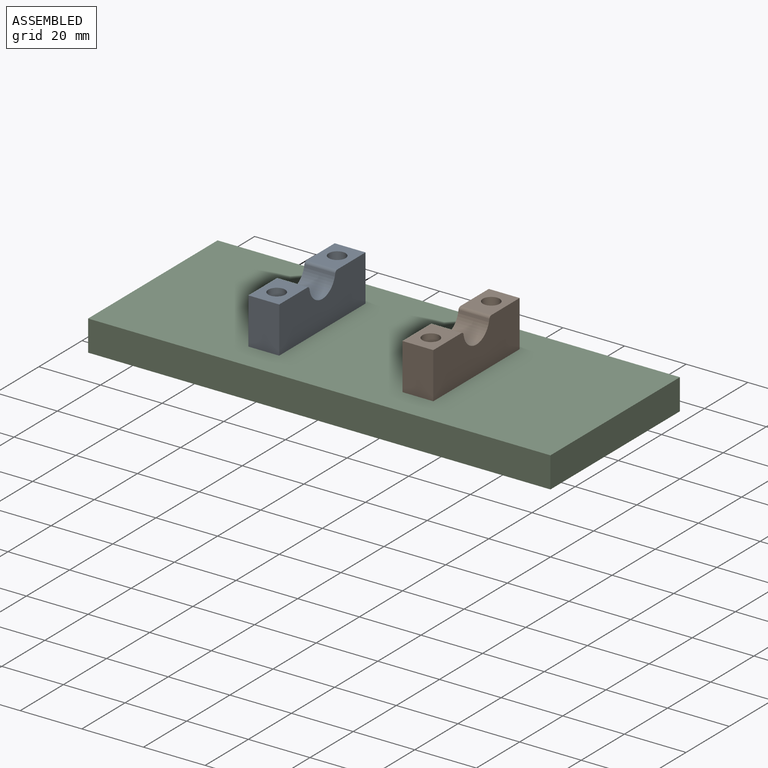
[diagram: assembled view]
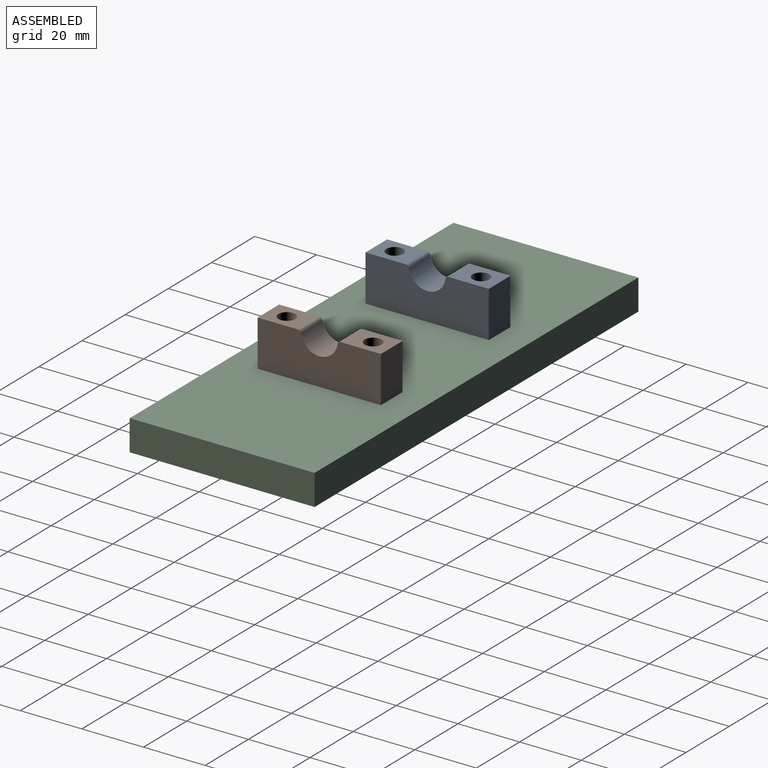
[diagram: assembled view, second angle]
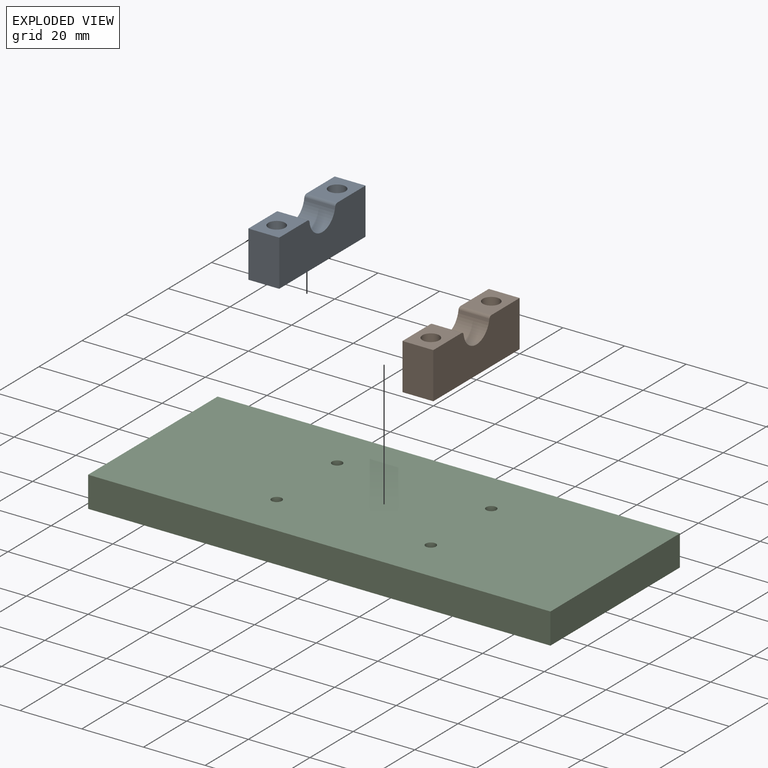
[diagram: exploded view]
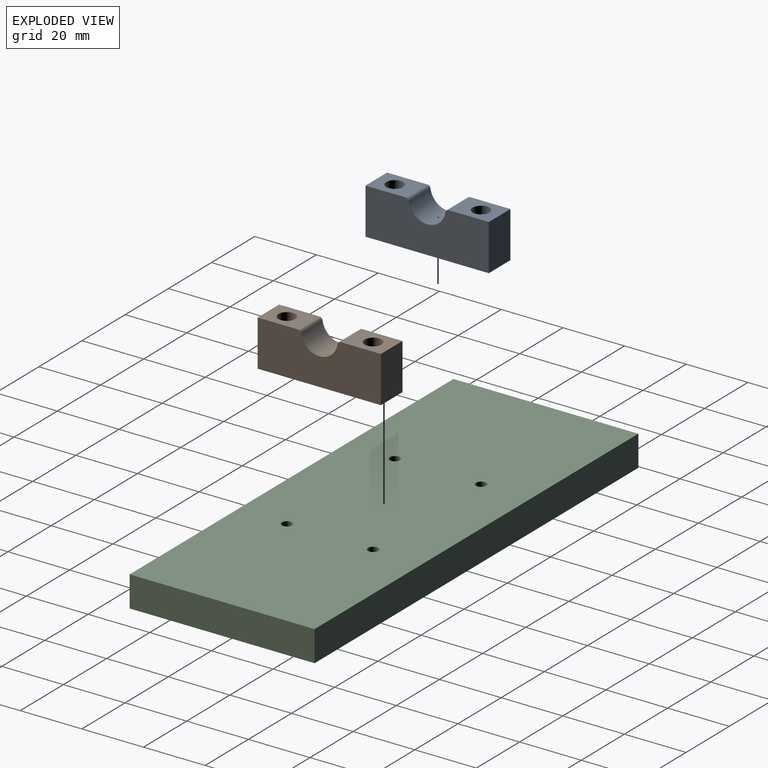
[diagram: exploded view, second angle]
ASSEMBLY  parts=3 mates=4
PART A: 12 faces, bbox 10x40x15 mm
  f0: plane 13.07x10mm, normal (0,0,1), area 107mm2, adj f2,f5,f6,f8,f11
  f1: plane 13.07x10mm, normal (0,0,1), area 107mm2, adj f4,f5,f6,f9,f10
  f2: plane 15x10mm, normal (0,-1,0), area 150mm2, adj f0,f3,f5,f6
  f3: plane 40x10mm, normal (0,0,-1), area 352.5mm2, adj f2,f4,f5,f6,f10,f11
  f4: plane 15x10mm, normal (0,1,0), area 150mm2, adj f1,f3,f5,f6
  f5: plane 40x15mm, normal (1,0,0), area 543.1mm2, adj f0,f1,f2,f3,f4,f7,f8,f9
  f6: plane 40x15mm, normal (-1,0,0), area 543.1mm2, adj f0,f1,f2,f3,f4,f7,f8,f9
  f7: cylinder r=6mm len=11.88mm, axis (1,0,0), area 171.3mm2, adj f5,f6,f8,f9
  f8: cylinder r=1mm len=10mm, axis (1,0,0), area 14.3mm2, adj f0,f5,f6,f7
  f9: cylinder r=1mm len=10mm, axis (1,0,0), area 14.3mm2, adj f1,f5,f6,f7
  f10: cylinder r=2.75mm len=15mm, axis (0,0,-1), area 259.2mm2, adj f1,f3
  f11: cylinder r=2.75mm len=15mm, axis (0,0,-1), area 259.2mm2, adj f0,f3
PART B: same geometry as A
PART C: 10 faces, bbox 150x60x10 mm
  f0: plane 60x10mm, normal (1,0,0), area 600mm2, adj f1,f3,f4,f5
  f1: plane 150x10mm, normal (0,1,0), area 1500mm2, adj f0,f2,f4,f5
  f2: plane 60x10mm, normal (-1,0,0), area 600mm2, adj f1,f3,f4,f5
  f3: plane 150x10mm, normal (0,-1,0), area 1500mm2, adj f0,f2,f4,f5
  f4: plane 150x60mm, normal (0,0,1), area 8965.8mm2, adj f0,f1,f2,f3,f6,f7,f8,f9
  f5: plane 150x60mm, normal (0,0,-1), area 8965.8mm2, adj f0,f1,f2,f3,f6,f7,f8,f9
  f6: cylinder r=1.65mm len=10mm, axis (0,0,1), area 103.7mm2, adj f4,f5
  f7: cylinder r=1.65mm len=10mm, axis (0,0,1), area 103.7mm2, adj f4,f5
  f8: cylinder r=1.65mm len=10mm, axis (0,0,1), area 103.7mm2, adj f4,f5
  f9: cylinder r=1.65mm len=10mm, axis (0,0,1), area 103.7mm2, adj f4,f5
PLACE A t=(-25,0,10)mm
PLACE B t=(25,0,10)mm
PLACE C at identity fixed
MATE revolute C.f7 <-> A.f11  axis (0,0,1) through (-25,-14,10)mm
MATE cylindrical C.f9 <-> B.f10  axis (0,0,1) through (25,14,10)mm
MATE revolute C.f8 <-> C.f8  axis (0,0,-1) through (25,-14,0)mm
MATE cylindrical C.f6 <-> C.f6  axis (0,0,-1) through (-25,14,0)mm
